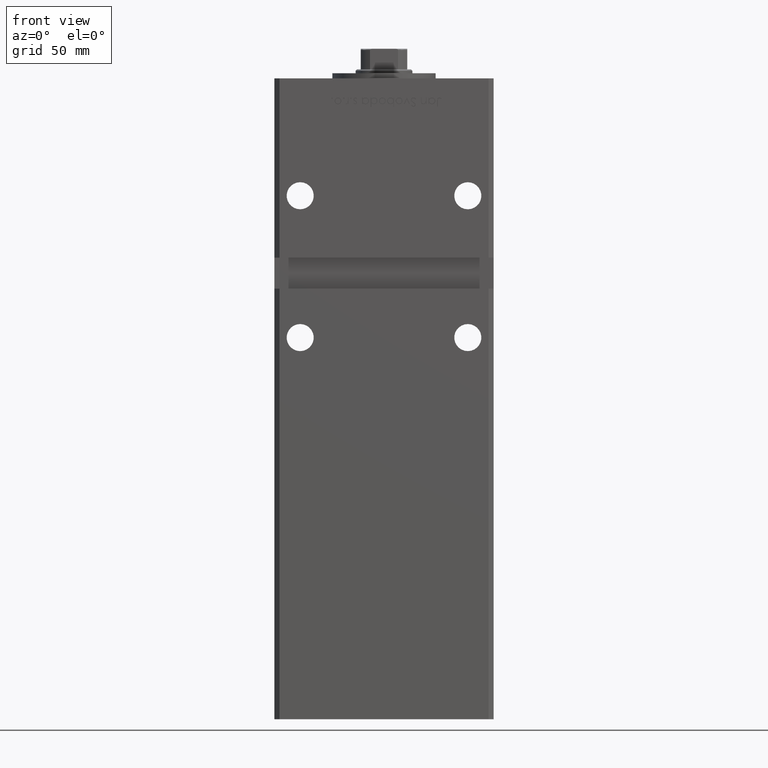
[diagram: clean part render]
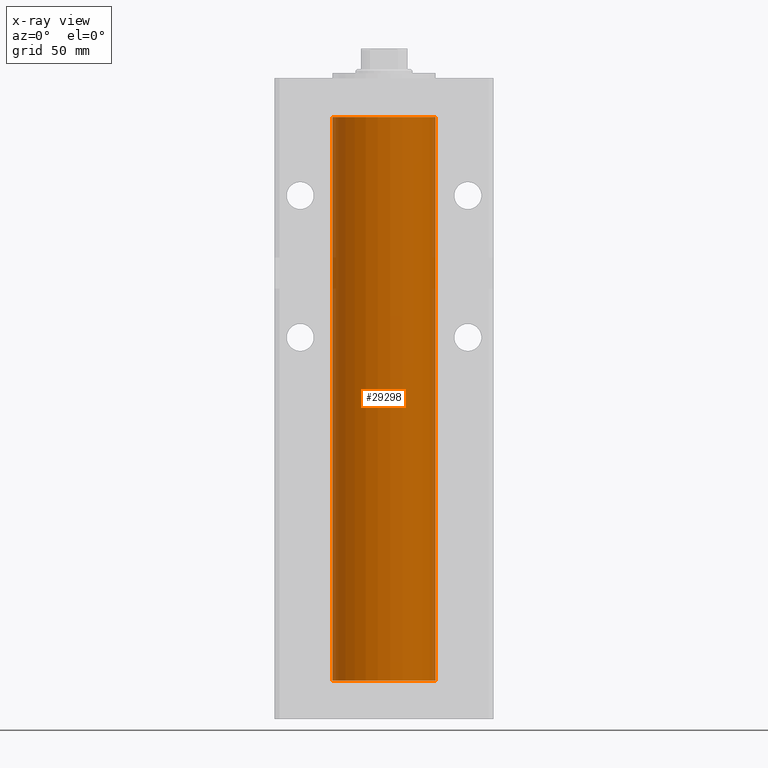
[diagram: x-ray — body ghosted, one internal face saturated and labeled with its STEP entity id]
A machine part, front view, then the same camera in x-ray: the body is ghosted and one INTERNAL B-rep face — a face not visible from any outside direction — is saturated and labeled: STEP entity #29298.
In plain terms, the highlighted cylindrical surface (partial cylindrical patch) has radius 20 mm, axis along (-0, -0, -1).
Its self-contained STEP definition (entity closure, byte-faithful):
#1985 = VECTOR ( 'NONE', #42409, 1000.000000000000000 ) ;
#4323 = FACE_OUTER_BOUND ( 'NONE', #5719, .T. ) ;
#4805 = ORIENTED_EDGE ( 'NONE', *, *, #25359, .T. ) ;
#5719 = EDGE_LOOP ( 'NONE', ( #4805, #33899, #10721, #15016 ) ) ;
#6665 = EDGE_CURVE ( 'NONE', #52947, #27451, #7129, .T. ) ;
#7129 = LINE ( 'NONE', #36377, #18028 ) ;
#8969 = CARTESIAN_POINT ( 'NONE',  ( -20.00000000000000000, 0.000000000000000000, 218.5000000000000000 ) ) ;
#10721 = ORIENTED_EDGE ( 'NONE', *, *, #18874, .F. ) ;
#10738 = AXIS2_PLACEMENT_3D ( 'NONE', #11200, #48800, #48544 ) ;
#11200 = CARTESIAN_POINT ( 'NONE',  ( 0.000000000000000000, 0.000000000000000000, 218.5000000000000000 ) ) ;
#13173 = CYLINDRICAL_SURFACE ( 'NONE', #15636, 20.00000000000000000 ) ;
#15016 = ORIENTED_EDGE ( 'NONE', *, *, #20138, .F. ) ;
#15445 = DIRECTION ( 'NONE',  ( -1.000000000000000000, 0.000000000000000000, 0.000000000000000000 ) ) ;
#15636 = AXIS2_PLACEMENT_3D ( 'NONE', #23765, #33327, #15445 ) ;
#18028 = VECTOR ( 'NONE', #19486, 1000.000000000000000 ) ;
#18874 = EDGE_CURVE ( 'NONE', #38343, #27451, #22555, .T. ) ;
#19486 = DIRECTION ( 'NONE',  ( -0.000000000000000000, -0.000000000000000000, -1.000000000000000000 ) ) ;
#20138 = EDGE_CURVE ( 'NONE', #43014, #38343, #31410, .T. ) ;
#21430 = DIRECTION ( 'NONE',  ( 1.000000000000000000, 0.000000000000000000, 0.000000000000000000 ) ) ;
#22555 = CIRCLE ( 'NONE', #37095, 20.00000000000000000 ) ;
#23765 = CARTESIAN_POINT ( 'NONE',  ( 0.000000000000000000, 0.000000000000000000, 218.5000000000000000 ) ) ;
#24939 = DIRECTION ( 'NONE',  ( -0.000000000000000000, 0.000000000000000000, 1.000000000000000000 ) ) ;
#25359 = EDGE_CURVE ( 'NONE', #43014, #52947, #27877, .T. ) ;
#26758 = CARTESIAN_POINT ( 'NONE',  ( -20.00000000000000000, 0.000000000000000000, 0.000000000000000000 ) ) ;
#27451 = VERTEX_POINT ( 'NONE', #40987 ) ;
#27877 = CIRCLE ( 'NONE', #10738, 20.00000000000000000 ) ;
#29232 = CARTESIAN_POINT ( 'NONE',  ( 0.000000000000000000, 0.000000000000000000, 0.000000000000000000 ) ) ;
#29298 = ADVANCED_FACE ( 'NONE', ( #4323 ), #13173, .F. ) ;
#31410 = LINE ( 'NONE', #47264, #1985 ) ;
#33327 = DIRECTION ( 'NONE',  ( -0.000000000000000000, -0.000000000000000000, -1.000000000000000000 ) ) ;
#33899 = ORIENTED_EDGE ( 'NONE', *, *, #6665, .T. ) ;
#36377 = CARTESIAN_POINT ( 'NONE',  ( 20.00000000000000000, 2.449293598294706513E-15, 218.5000000000000000 ) ) ;
#37095 = AXIS2_PLACEMENT_3D ( 'NONE', #29232, #24939, #21430 ) ;
#38343 = VERTEX_POINT ( 'NONE', #26758 ) ;
#40987 = CARTESIAN_POINT ( 'NONE',  ( 20.00000000000000000, 2.449293598294706513E-15, 0.000000000000000000 ) ) ;
#41965 = CARTESIAN_POINT ( 'NONE',  ( 20.00000000000000000, 2.449293598294706513E-15, 218.5000000000000000 ) ) ;
#42409 = DIRECTION ( 'NONE',  ( -0.000000000000000000, -0.000000000000000000, -1.000000000000000000 ) ) ;
#43014 = VERTEX_POINT ( 'NONE', #8969 ) ;
#47264 = CARTESIAN_POINT ( 'NONE',  ( -20.00000000000000000, 0.000000000000000000, 218.5000000000000000 ) ) ;
#48544 = DIRECTION ( 'NONE',  ( 1.000000000000000000, 0.000000000000000000, 0.000000000000000000 ) ) ;
#48800 = DIRECTION ( 'NONE',  ( -0.000000000000000000, 0.000000000000000000, 1.000000000000000000 ) ) ;
#52947 = VERTEX_POINT ( 'NONE', #41965 ) ;